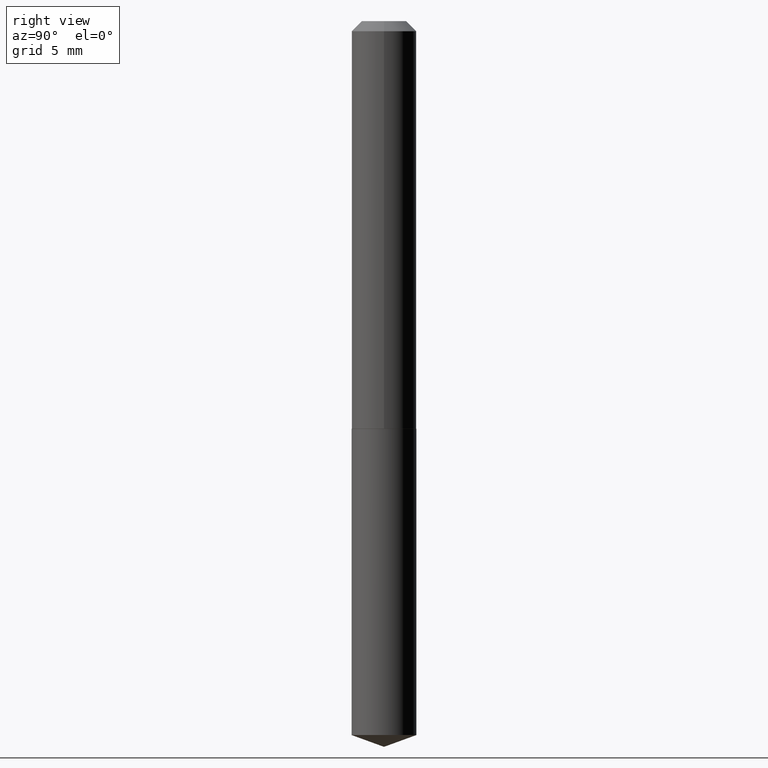
[diagram: clean part render]
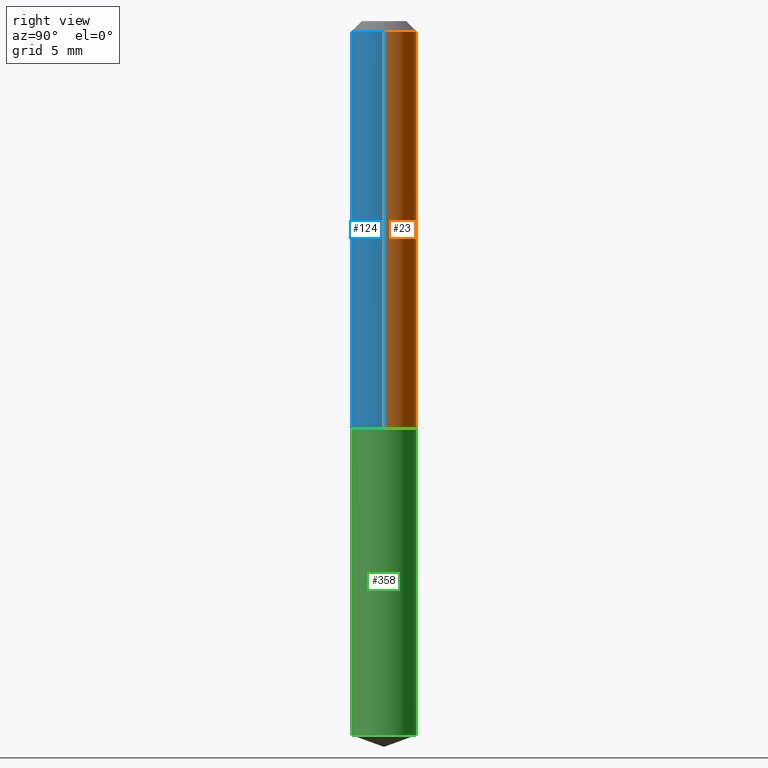
[diagram: same view with three faces highlighted in distinct colors, each labeled with its STEP entity id]
A machine part, right view with three faces highlighted in distinct colors.
Their STEP definitions:

[orange] entity #23 — the highlighted cylindrical surface (edge-blend (fillet) strip) has radius 2.5527 mm, axis along (-0, 0, 1).
#3 = AXIS2_PLACEMENT_3D ( 'NONE', #63, #186, #180 ) ;
#5 = CARTESIAN_POINT ( 'NONE',  ( 3.088627102211827979E-29, -4.409740930958893142E-15, -1.263000000000000123 ) ) ;
#14 = AXIS2_PLACEMENT_3D ( 'NONE', #5, #187, #322 ) ;
#22 = CARTESIAN_POINT ( 'NONE',  ( -0.1005000000000000893, 7.140954494389013210E-16, -4.943529765706185016E-30 ) ) ;
#23 = ADVANCED_FACE ( 'NONE', ( #222 ), #339, .T. ) ;
#33 = ORIENTED_EDGE ( 'NONE', *, *, #109, .F. ) ;
#62 = ORIENTED_EDGE ( 'NONE', *, *, #116, .T. ) ;
#63 = CARTESIAN_POINT ( 'NONE',  ( 7.642090019328600035E-31, -1.091087918388489897E-16, -0.03125000000000020123 ) ) ;
#80 = LINE ( 'NONE', #198, #378 ) ;
#94 = VERTEX_POINT ( 'NONE', #336 ) ;
#109 = EDGE_CURVE ( 'NONE', #94, #235, #80, .T. ) ;
#116 = EDGE_CURVE ( 'NONE', #94, #179, #346, .T. ) ;
#132 = EDGE_LOOP ( 'NONE', ( #62, #165, #280, #33 ) ) ;
#138 = CARTESIAN_POINT ( 'NONE',  ( 0.000000000000000000, 0.000000000000000000, 0.000000000000000000 ) ) ;
#140 = DIRECTION ( 'NONE',  ( -2.445468806185136597E-29, 3.491481338843145583E-15, 1.000000000000000000 ) ) ;
#145 = DIRECTION ( 'NONE',  ( -2.445468806185136877E-29, 3.491481338843145188E-15, 1.000000000000000000 ) ) ;
#152 = CARTESIAN_POINT ( 'NONE',  ( 0.1005000000000000060, -8.108965409463188774E-16, -0.03125000000000020123 ) ) ;
#165 = ORIENTED_EDGE ( 'NONE', *, *, #202, .T. ) ;
#179 = VERTEX_POINT ( 'NONE', #270 ) ;
#180 = DIRECTION ( 'NONE',  ( 1.000000000000000000, -6.982962677686266711E-15, 0.000000000000000000 ) ) ;
#186 = DIRECTION ( 'NONE',  ( -2.445468806185136597E-29, 3.491481338843145583E-15, 1.000000000000000000 ) ) ;
#187 = DIRECTION ( 'NONE',  ( -2.445468806185136597E-29, 3.491481338843145583E-15, 1.000000000000000000 ) ) ;
#198 = CARTESIAN_POINT ( 'NONE',  ( 0.1005000000000000893, -7.017877491074704671E-16, 4.900557659674919900E-30 ) ) ;
#202 = EDGE_CURVE ( 'NONE', #179, #274, #234, .T. ) ;
#220 = AXIS2_PLACEMENT_3D ( 'NONE', #138, #140, #248 ) ;
#222 = FACE_OUTER_BOUND ( 'NONE', #132, .T. ) ;
#234 = LINE ( 'NONE', #22, #350 ) ;
#235 = VERTEX_POINT ( 'NONE', #152 ) ;
#248 = DIRECTION ( 'NONE',  ( 1.000000000000000000, -6.982962677686266711E-15, 4.876176775795935793E-29 ) ) ;
#266 = EDGE_CURVE ( 'NONE', #235, #274, #277, .T. ) ;
#270 = CARTESIAN_POINT ( 'NONE',  ( -0.1005000000000001864, -3.695645481519991426E-15, -1.263000000000000123 ) ) ;
#274 = VERTEX_POINT ( 'NONE', #301 ) ;
#277 = CIRCLE ( 'NONE', #3, 0.1005000000000000060 ) ;
#280 = ORIENTED_EDGE ( 'NONE', *, *, #266, .F. ) ;
#301 = CARTESIAN_POINT ( 'NONE',  ( -0.1005000000000000060, -1.545329411959969209E-15, -0.03125000000000020123 ) ) ;
#322 = DIRECTION ( 'NONE',  ( 1.000000000000000000, -6.982962677686267499E-15, 0.000000000000000000 ) ) ;
#336 = CARTESIAN_POINT ( 'NONE',  ( 0.1005000000000001864, -5.111528680066364398E-15, -1.263000000000000123 ) ) ;
#339 = CYLINDRICAL_SURFACE ( 'NONE', #220, 0.1005000000000000893 ) ;
#343 = DIRECTION ( 'NONE',  ( -2.445468806185136877E-29, 3.491481338843145188E-15, 1.000000000000000000 ) ) ;
#346 = CIRCLE ( 'NONE', #14, 0.1005000000000001864 ) ;
#350 = VECTOR ( 'NONE', #145, 39.37007874015748143 ) ;
#378 = VECTOR ( 'NONE', #343, 39.37007874015748143 ) ;

[blue] entity #124 — the highlighted cylindrical surface (edge-blend (fillet) strip) has radius 2.5527 mm, axis along (-0, 0, 1).
#11 = EDGE_LOOP ( 'NONE', ( #272, #166, #182, #125 ) ) ;
#21 = CARTESIAN_POINT ( 'NONE',  ( 0.000000000000000000, 0.000000000000000000, 0.000000000000000000 ) ) ;
#22 = CARTESIAN_POINT ( 'NONE',  ( -0.1005000000000000893, 7.140954494389013210E-16, -4.943529765706185016E-30 ) ) ;
#27 = DIRECTION ( 'NONE',  ( 1.000000000000000000, -6.982962677686266711E-15, 0.000000000000000000 ) ) ;
#31 = AXIS2_PLACEMENT_3D ( 'NONE', #107, #375, #99 ) ;
#79 = EDGE_CURVE ( 'NONE', #179, #94, #366, .T. ) ;
#80 = LINE ( 'NONE', #198, #378 ) ;
#94 = VERTEX_POINT ( 'NONE', #336 ) ;
#98 = AXIS2_PLACEMENT_3D ( 'NONE', #351, #319, #27 ) ;
#99 = DIRECTION ( 'NONE',  ( 1.000000000000000000, -6.982962677686267499E-15, 0.000000000000000000 ) ) ;
#107 = CARTESIAN_POINT ( 'NONE',  ( 3.088627102211827979E-29, -4.409740930958893142E-15, -1.263000000000000123 ) ) ;
#109 = EDGE_CURVE ( 'NONE', #94, #235, #80, .T. ) ;
#124 = ADVANCED_FACE ( 'NONE', ( #318 ), #297, .T. ) ;
#125 = ORIENTED_EDGE ( 'NONE', *, *, #164, .F. ) ;
#145 = DIRECTION ( 'NONE',  ( -2.445468806185136877E-29, 3.491481338843145188E-15, 1.000000000000000000 ) ) ;
#146 = AXIS2_PLACEMENT_3D ( 'NONE', #21, #237, #149 ) ;
#149 = DIRECTION ( 'NONE',  ( 1.000000000000000000, -6.982962677686266711E-15, 4.876176775795935793E-29 ) ) ;
#152 = CARTESIAN_POINT ( 'NONE',  ( 0.1005000000000000060, -8.108965409463188774E-16, -0.03125000000000020123 ) ) ;
#164 = EDGE_CURVE ( 'NONE', #274, #235, #359, .T. ) ;
#166 = ORIENTED_EDGE ( 'NONE', *, *, #79, .T. ) ;
#179 = VERTEX_POINT ( 'NONE', #270 ) ;
#182 = ORIENTED_EDGE ( 'NONE', *, *, #109, .T. ) ;
#198 = CARTESIAN_POINT ( 'NONE',  ( 0.1005000000000000893, -7.017877491074704671E-16, 4.900557659674919900E-30 ) ) ;
#202 = EDGE_CURVE ( 'NONE', #179, #274, #234, .T. ) ;
#234 = LINE ( 'NONE', #22, #350 ) ;
#235 = VERTEX_POINT ( 'NONE', #152 ) ;
#237 = DIRECTION ( 'NONE',  ( -2.445468806185136597E-29, 3.491481338843145583E-15, 1.000000000000000000 ) ) ;
#270 = CARTESIAN_POINT ( 'NONE',  ( -0.1005000000000001864, -3.695645481519991426E-15, -1.263000000000000123 ) ) ;
#272 = ORIENTED_EDGE ( 'NONE', *, *, #202, .F. ) ;
#274 = VERTEX_POINT ( 'NONE', #301 ) ;
#297 = CYLINDRICAL_SURFACE ( 'NONE', #146, 0.1005000000000000893 ) ;
#301 = CARTESIAN_POINT ( 'NONE',  ( -0.1005000000000000060, -1.545329411959969209E-15, -0.03125000000000020123 ) ) ;
#318 = FACE_OUTER_BOUND ( 'NONE', #11, .T. ) ;
#319 = DIRECTION ( 'NONE',  ( -2.445468806185136597E-29, 3.491481338843145583E-15, 1.000000000000000000 ) ) ;
#336 = CARTESIAN_POINT ( 'NONE',  ( 0.1005000000000001864, -5.111528680066364398E-15, -1.263000000000000123 ) ) ;
#343 = DIRECTION ( 'NONE',  ( -2.445468806185136877E-29, 3.491481338843145188E-15, 1.000000000000000000 ) ) ;
#350 = VECTOR ( 'NONE', #145, 39.37007874015748143 ) ;
#351 = CARTESIAN_POINT ( 'NONE',  ( 7.642090019328600035E-31, -1.091087918388489897E-16, -0.03125000000000020123 ) ) ;
#359 = CIRCLE ( 'NONE', #98, 0.1005000000000000060 ) ;
#366 = CIRCLE ( 'NONE', #31, 0.1005000000000001864 ) ;
#375 = DIRECTION ( 'NONE',  ( -2.445468806185136597E-29, 3.491481338843145583E-15, 1.000000000000000000 ) ) ;
#378 = VECTOR ( 'NONE', #343, 39.37007874015748143 ) ;

[green] entity #358 — the highlighted cylindrical surface (edge-blend (fillet) strip) has radius 2.5527 mm, axis along (-0, 0, 1).
#6 = CARTESIAN_POINT ( 'NONE',  ( 3.089849836614920220E-29, -4.411486671628314645E-15, -1.263500000000000068 ) ) ;
#26 = ORIENTED_EDGE ( 'NONE', *, *, #41, .T. ) ;
#41 = EDGE_CURVE ( 'NONE', #72, #58, #51, .T. ) ;
#45 = CARTESIAN_POINT ( 'NONE',  ( 7.140954494389547664E-16, 0.1004999999999922899, -2.213420991456247044 ) ) ;
#51 = CIRCLE ( 'NONE', #65, 0.1005000000000000060 ) ;
#58 = VERTEX_POINT ( 'NONE', #45 ) ;
#65 = AXIS2_PLACEMENT_3D ( 'NONE', #101, #195, #338 ) ;
#68 = EDGE_CURVE ( 'NONE', #72, #298, #256, .T. ) ;
#72 = VERTEX_POINT ( 'NONE', #75 ) ;
#75 = CARTESIAN_POINT ( 'NONE',  ( -7.017877491074157398E-16, -0.1005000000000077498, -2.213420991456246600 ) ) ;
#77 = VECTOR ( 'NONE', #386, 39.37007874015748143 ) ;
#101 = CARTESIAN_POINT ( 'NONE',  ( 5.412794098916213992E-29, -7.728200989372345435E-15, -2.213420991456246600 ) ) ;
#102 = CYLINDRICAL_SURFACE ( 'NONE', #246, 0.1005000000000000060 ) ;
#121 = VERTEX_POINT ( 'NONE', #326 ) ;
#127 = DIRECTION ( 'NONE',  ( -2.445407863595241292E-29, 3.491568612100512464E-15, 1.000000000000000000 ) ) ;
#130 = ORIENTED_EDGE ( 'NONE', *, *, #211, .T. ) ;
#148 = EDGE_LOOP ( 'NONE', ( #26, #130, #210, #384 ) ) ;
#154 = VECTOR ( 'NONE', #257, 39.37007874015748143 ) ;
#192 = DIRECTION ( 'NONE',  ( -6.982962677686265922E-15, -1.000000000000000000, 2.718256710113694497E-15 ) ) ;
#195 = DIRECTION ( 'NONE',  ( -2.445407863595241292E-29, 3.491568612100512464E-15, 1.000000000000000000 ) ) ;
#196 = CARTESIAN_POINT ( 'NONE',  ( 3.089849836614920220E-29, -4.411486671628314645E-15, -1.263500000000000068 ) ) ;
#210 = ORIENTED_EDGE ( 'NONE', *, *, #311, .F. ) ;
#211 = EDGE_CURVE ( 'NONE', #58, #121, #249, .T. ) ;
#213 = DIRECTION ( 'NONE',  ( -6.982962677686265922E-15, -1.000000000000000000, 2.718256710113694497E-15 ) ) ;
#240 = CARTESIAN_POINT ( 'NONE',  ( -7.017877491074388140E-16, -0.1005000000000044191, -1.263499999999999845 ) ) ;
#246 = AXIS2_PLACEMENT_3D ( 'NONE', #196, #283, #192 ) ;
#249 = LINE ( 'NONE', #329, #77 ) ;
#256 = LINE ( 'NONE', #371, #154 ) ;
#257 = DIRECTION ( 'NONE',  ( -2.445407863595241292E-29, 3.491568612100512070E-15, 1.000000000000000000 ) ) ;
#283 = DIRECTION ( 'NONE',  ( -2.445407863595241292E-29, 3.491568612100512464E-15, 1.000000000000000000 ) ) ;
#298 = VERTEX_POINT ( 'NONE', #240 ) ;
#311 = EDGE_CURVE ( 'NONE', #298, #121, #347, .T. ) ;
#321 = AXIS2_PLACEMENT_3D ( 'NONE', #6, #127, #213 ) ;
#326 = CARTESIAN_POINT ( 'NONE',  ( 7.140954494389548650E-16, 0.1004999999999956067, -1.263500000000000290 ) ) ;
#329 = CARTESIAN_POINT ( 'NONE',  ( 7.140954494389315936E-16, 0.1004999999999956067, -1.263500000000000290 ) ) ;
#338 = DIRECTION ( 'NONE',  ( -6.982962677686265922E-15, -1.000000000000000000, 2.718256710113694497E-15 ) ) ;
#347 = CIRCLE ( 'NONE', #321, 0.1005000000000000060 ) ;
#358 = ADVANCED_FACE ( 'NONE', ( #372 ), #102, .T. ) ;
#371 = CARTESIAN_POINT ( 'NONE',  ( -7.017877491074388140E-16, -0.1005000000000044191, -1.263499999999999845 ) ) ;
#372 = FACE_OUTER_BOUND ( 'NONE', #148, .T. ) ;
#384 = ORIENTED_EDGE ( 'NONE', *, *, #68, .F. ) ;
#386 = DIRECTION ( 'NONE',  ( -2.445407863595241292E-29, 3.491568612100512070E-15, 1.000000000000000000 ) ) ;